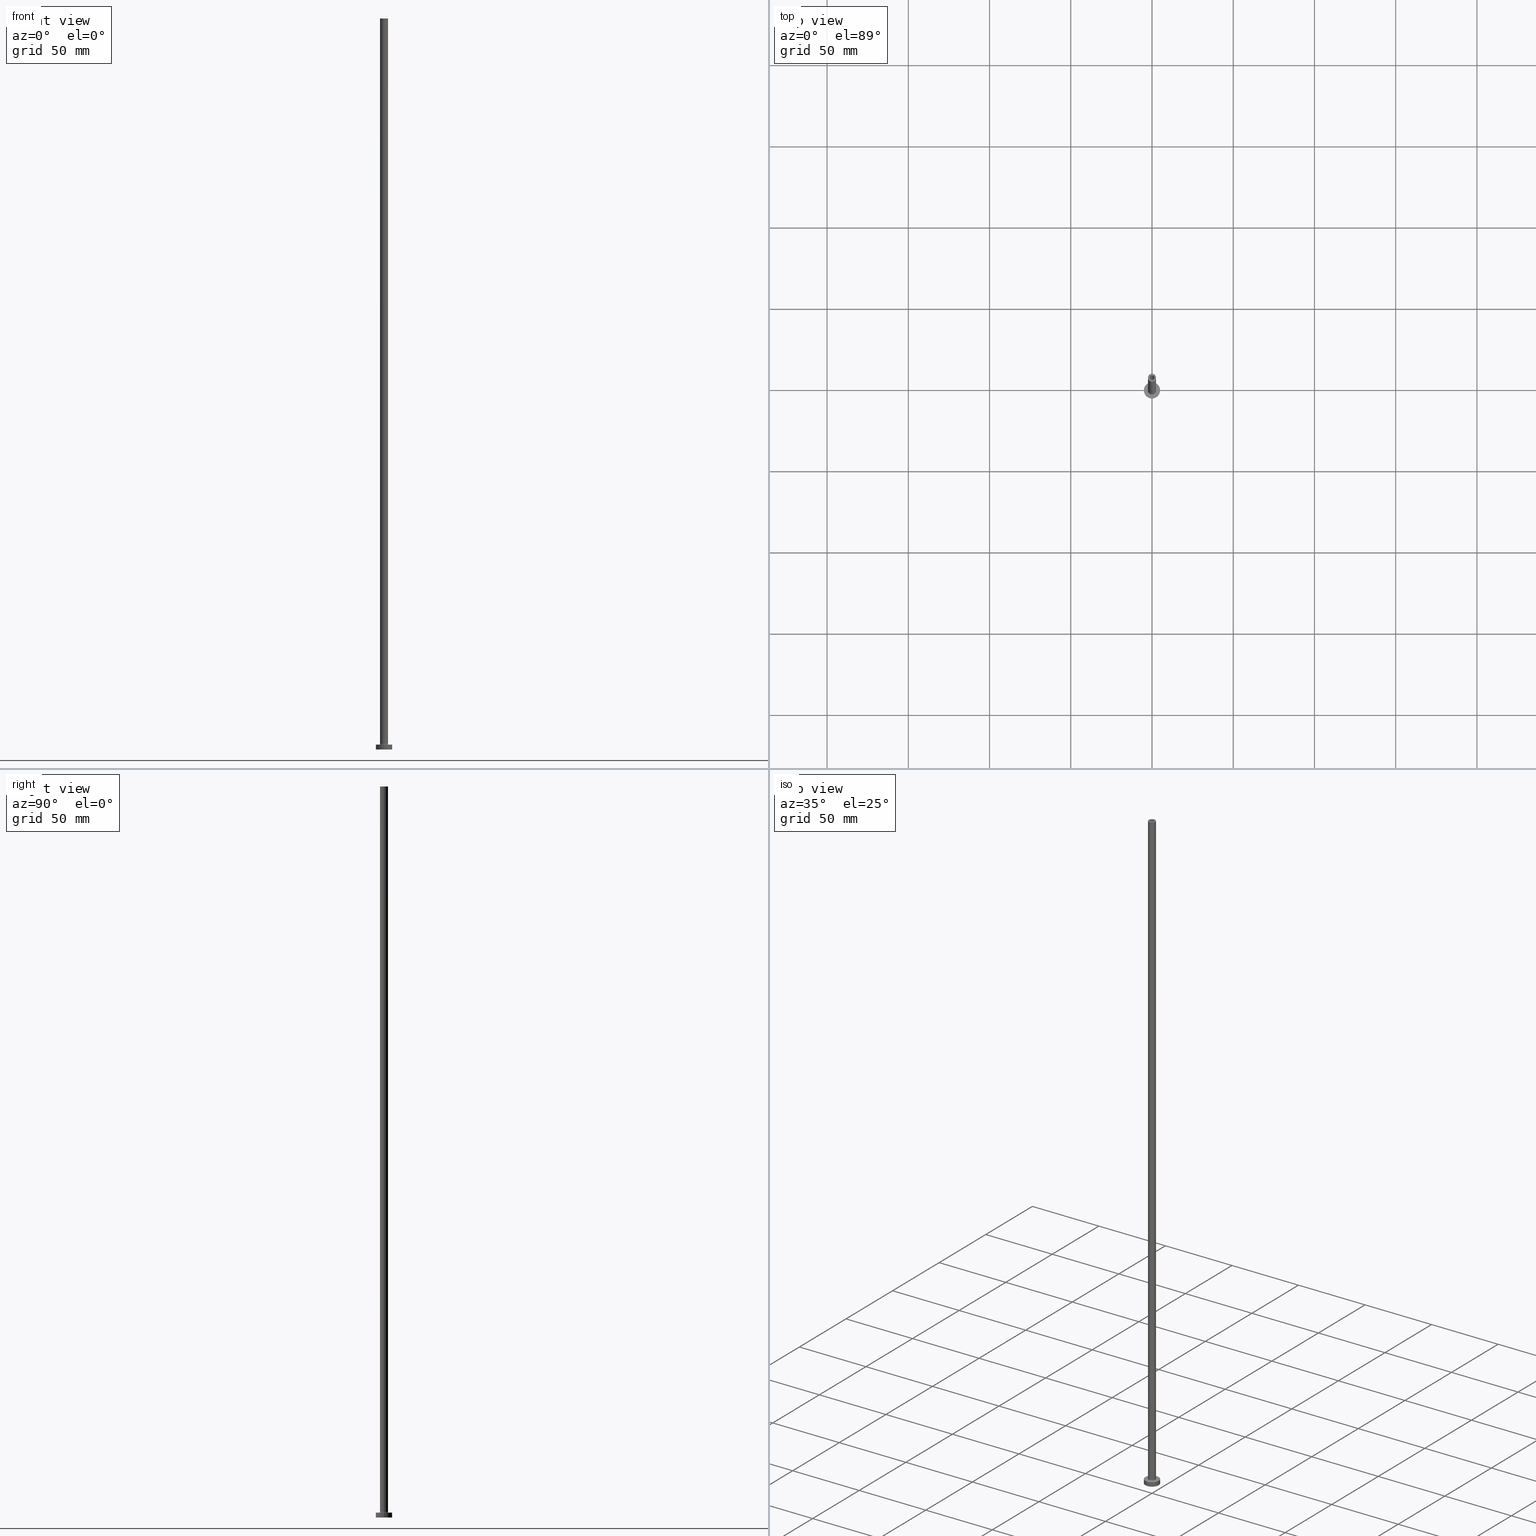
[diagram: canonical four-view strip — front | top / right | iso, engineering-drawing reading convention]
A machine part, canonical four-view strip (front | top / right | iso — engineering-drawing reading convention). The complete STEP part file that produces these views, byte-faithful:
ISO-10303-21;
HEADER;
FILE_DESCRIPTION (( 'STEP AP203' ),
    '1' );
FILE_NAME ('1eb1.STEP',
    '2023-02-13T17:58:50',
    ( '' ),
    ( '' ),
    'SwSTEP 2.0',
    'SolidWorks 2019',
    '' );
FILE_SCHEMA (( 'CONFIG_CONTROL_DESIGN' ));
ENDSEC;

DATA;
#1 = DIRECTION ( 'NONE',  ( 1.000000000000000000, 0.000000000000000000, 0.000000000000000000 ) ) ;
#2 = VECTOR ( 'NONE', #370, 1000.000000000000000 ) ;
#3 = AXIS2_PLACEMENT_3D ( 'NONE', #295, #426, #432 ) ;
#4 = EDGE_CURVE ( 'NONE', #381, #416, #97, .T. ) ;
#5 = CIRCLE ( 'NONE', #343, 5.000000000000000000 ) ;
#6 = EDGE_CURVE ( 'NONE', #65, #28, #207, .T. ) ;
#7 = EDGE_LOOP ( 'NONE', ( #69, #141 ) ) ;
#8 = DIRECTION ( 'NONE',  ( 1.000000000000000000, 0.000000000000000000, 0.000000000000000000 ) ) ;
#9 = CARTESIAN_POINT ( 'NONE',  ( -5.000000000000000000, 0.000000000000000000, 3.000000000000000000 ) ) ;
#10 = AXIS2_PLACEMENT_3D ( 'NONE', #296, #160, #212 ) ;
#11 = PERSON_AND_ORGANIZATION ( #431, #344 ) ;
#12 = COORDINATED_UNIVERSAL_TIME_OFFSET ( 1, 0, .AHEAD. ) ;
#13 = EDGE_CURVE ( 'NONE', #65, #311, #108, .T. ) ;
#14 = EDGE_LOOP ( 'NONE', ( #447, #427 ) ) ;
#15 = AXIS2_PLACEMENT_3D ( 'NONE', #80, #329, #1 ) ;
#16 = ORIENTED_EDGE ( 'NONE', *, *, #273, .T. ) ;
#17 = ORIENTED_EDGE ( 'NONE', *, *, #177, .F. ) ;
#18 = CIRCLE ( 'NONE', #368, 1.500000000000000222 ) ;
#19 = PERSON_AND_ORGANIZATION_ROLE ( 'design_owner' ) ;
#20 = ORIENTED_EDGE ( 'NONE', *, *, #145, .F. ) ;
#21 = CARTESIAN_POINT ( 'NONE',  ( -1.650000000000000133, 0.000000000000000000, 409.6669047558312400 ) ) ;
#22 = DIRECTION ( 'NONE',  ( 0.000000000000000000, 0.000000000000000000, 1.000000000000000000 ) ) ;
#23 = CARTESIAN_POINT ( 'NONE',  ( 0.000000000000000000, 0.000000000000000000, 450.0000000000000000 ) ) ;
#24 = EDGE_LOOP ( 'NONE', ( #227, #211 ) ) ;
#25 = ORIENTED_EDGE ( 'NONE', *, *, #305, .T. ) ;
#26 = ORIENTED_EDGE ( 'NONE', *, *, #6, .F. ) ;
#27 = CARTESIAN_POINT ( 'NONE',  ( -2.500000000000000000, 0.000000000000000000, 450.0000000000000000 ) ) ;
#28 = VERTEX_POINT ( 'NONE', #150 ) ;
#29 = ORIENTED_EDGE ( 'NONE', *, *, #305, .F. ) ;
#30 = CARTESIAN_POINT ( 'NONE',  ( 0.000000000000000000, 0.000000000000000000, 3.300000000000025135 ) ) ;
#31 = AXIS2_PLACEMENT_3D ( 'NONE', #231, #258, #46 ) ;
#32 = CIRCLE ( 'NONE', #124, 5.000000000000000000 ) ;
#33 = UNCERTAINTY_MEASURE_WITH_UNIT (LENGTH_MEASURE( 1.000000000000000082E-05 ), #365, 'distance_accuracy_value', 'NONE');
#34 = DIRECTION ( 'NONE',  ( -0.000000000000000000, -0.000000000000000000, -1.000000000000000000 ) ) ;
#35 = CC_DESIGN_PERSON_AND_ORGANIZATION_ASSIGNMENT ( #52, #170, ( #385 ) ) ;
#36 = FACE_OUTER_BOUND ( 'NONE', #182, .T. ) ;
#37 = DATE_AND_TIME ( #218, #214 ) ;
#38 = DIRECTION ( 'NONE',  ( 1.000000000000000000, 0.000000000000000000, 0.000000000000000000 ) ) ;
#39 = ORIENTED_EDGE ( 'NONE', *, *, #102, .F. ) ;
#40 = CARTESIAN_POINT ( 'NONE',  ( 0.000000000000000000, 0.000000000000000000, 3.300000000000025135 ) ) ;
#41 = DIRECTION ( 'NONE',  ( 0.000000000000000000, 0.000000000000000000, 1.000000000000000000 ) ) ;
#42 = TOROIDAL_SURFACE ( 'NONE', #98, 2.799999999999999822, 0.2999999999999999889 ) ;
#43 = FACE_OUTER_BOUND ( 'NONE', #318, .T. ) ;
#44 = LINE ( 'NONE', #118, #91 ) ;
#45 = CC_DESIGN_PERSON_AND_ORGANIZATION_ASSIGNMENT ( #194, #90, ( #455 ) ) ;
#46 = DIRECTION ( 'NONE',  ( 1.000000000000000000, 0.000000000000000000, 0.000000000000000000 ) ) ;
#47 = VECTOR ( 'NONE', #138, 1000.000000000000000 ) ;
#48 = EDGE_CURVE ( 'NONE', #203, #454, #277, .T. ) ;
#49 = DIRECTION ( 'NONE',  ( 0.000000000000000000, -1.000000000000000000, 0.000000000000000000 ) ) ;
#50 = FACE_OUTER_BOUND ( 'NONE', #393, .T. ) ;
#51 = AXIS2_PLACEMENT_3D ( 'NONE', #220, #22, #113 ) ;
#52 = PERSON_AND_ORGANIZATION ( #431, #344 ) ;
#53 = ORIENTED_EDGE ( 'NONE', *, *, #4, .T. ) ;
#54 = APPROVAL_ROLE ( '' ) ;
#55 = FACE_OUTER_BOUND ( 'NONE', #14, .T. ) ;
#56 = CARTESIAN_POINT ( 'NONE',  ( 0.000000000000000000, 0.000000000000000000, 450.0000000000000000 ) ) ;
#57 = DATE_AND_TIME ( #181, #143 ) ;
#58 = DIRECTION ( 'NONE',  ( -1.000000000000000000, 0.000000000000000000, 0.000000000000000000 ) ) ;
#59 = ORIENTED_EDGE ( 'NONE', *, *, #259, .F. ) ;
#60 = FACE_BOUND ( 'NONE', #100, .T. ) ;
#61 = ORIENTED_EDGE ( 'NONE', *, *, #102, .T. ) ;
#62 = FACE_OUTER_BOUND ( 'NONE', #222, .T. ) ;
#63 = CC_DESIGN_APPROVAL ( #186, ( #455 ) ) ;
#64 = MANIFOLD_SOLID_BREP ( 'Odebrat vysunut�m4', #237 ) ;
#65 = VERTEX_POINT ( 'NONE', #363 ) ;
#66 = FACE_BOUND ( 'NONE', #136, .T. ) ;
#67 = CARTESIAN_POINT ( 'NONE',  ( 0.000000000000000000, 0.000000000000000000, 3.300000000000025135 ) ) ;
#68 = PERSON_AND_ORGANIZATION ( #431, #344 ) ;
#69 = ORIENTED_EDGE ( 'NONE', *, *, #48, .T. ) ;
#70 = CARTESIAN_POINT ( 'NONE',  ( 5.000000000000000000, 6.123233995736766282E-16, 3.000000000000000000 ) ) ;
#71 = AXIS2_PLACEMENT_3D ( 'NONE', #376, #406, #442 ) ;
#72 = CC_DESIGN_APPROVAL ( #132, ( #385 ) ) ;
#73 = CARTESIAN_POINT ( 'NONE',  ( 0.000000000000000000, 0.000000000000000000, 409.6669047558312400 ) ) ;
#74 = DIRECTION ( 'NONE',  ( 1.000000000000000000, 0.000000000000000000, 0.000000000000000000 ) ) ;
#75 = FACE_OUTER_BOUND ( 'NONE', #317, .T. ) ;
#76 = ADVANCED_FACE ( 'NONE', ( #36 ), #326, .T. ) ;
#77 = ORIENTED_EDGE ( 'NONE', *, *, #156, .F. ) ;
#78 = CIRCLE ( 'NONE', #183, 0.2999999999999999334 ) ;
#79 = CIRCLE ( 'NONE', #3, 2.500000000000000000 ) ;
#80 = CARTESIAN_POINT ( 'NONE',  ( 0.000000000000000000, 0.000000000000000000, 0.000000000000000000 ) ) ;
#81 = CARTESIAN_POINT ( 'NONE',  ( 0.000000000000000000, 0.000000000000000000, 3.000000000000000000 ) ) ;
#82 = PLANE ( 'NONE',  #244 ) ;
#83 = PRODUCT_DEFINITION_SHAPE ( 'NONE', 'NONE',  #385 ) ;
#84 = VECTOR ( 'NONE', #413, 1000.000000000000000 ) ;
#85 = DIRECTION ( 'NONE',  ( 1.000000000000000000, 0.000000000000000000, -0.000000000000000000 ) ) ;
#86 = EDGE_CURVE ( 'NONE', #418, #188, #330, .T. ) ;
#87 = DIRECTION ( 'NONE',  ( 0.000000000000000000, 0.000000000000000000, 1.000000000000000000 ) ) ;
#88 = PLANE ( 'NONE',  #71 ) ;
#89 = COORDINATED_UNIVERSAL_TIME_OFFSET ( 1, 0, .AHEAD. ) ;
#90 = PERSON_AND_ORGANIZATION_ROLE ( 'design_supplier' ) ;
#91 = VECTOR ( 'NONE', #263, 1000.000000000000000 ) ;
#92 = EDGE_CURVE ( 'NONE', #215, #28, #157, .T. ) ;
#93 = EDGE_CURVE ( 'NONE', #420, #172, #249, .T. ) ;
#94 = ORIENTED_EDGE ( 'NONE', *, *, #93, .T. ) ;
#95 = ORIENTED_EDGE ( 'NONE', *, *, #13, .T. ) ;
#96 = CARTESIAN_POINT ( 'NONE',  ( -2.799999999999999822, 3.429011037612588783E-16, 3.300000000000025135 ) ) ;
#97 = CIRCLE ( 'NONE', #352, 1.500000000000000222 ) ;
#98 = AXIS2_PLACEMENT_3D ( 'NONE', #30, #402, #364 ) ;
#99 = EDGE_LOOP ( 'NONE', ( #449, #204, #378, #137 ) ) ;
#100 = EDGE_LOOP ( 'NONE', ( #235, #208 ) ) ;
#101 = ORIENTED_EDGE ( 'NONE', *, *, #289, .F. ) ;
#102 = EDGE_CURVE ( 'NONE', #420, #416, #320, .T. ) ;
#103 = CARTESIAN_POINT ( 'NONE',  ( -1.500000000000000222, 0.000000000000000000, 405.0000000000000000 ) ) ;
#104 = CARTESIAN_POINT ( 'NONE',  ( 0.000000000000000000, 0.000000000000000000, 3.000000000000000000 ) ) ;
#105 = PRODUCT ( '1eb1', '1eb1', '', ( #154 ) ) ;
#106 = CARTESIAN_POINT ( 'NONE',  ( 2.500000000000000000, 3.061616997868383141E-16, 450.0000000000000000 ) ) ;
#107 = FACE_OUTER_BOUND ( 'NONE', #355, .T. ) ;
#108 = CIRCLE ( 'NONE', #221, 1.650000000000000133 ) ;
#109 = CC_DESIGN_SECURITY_CLASSIFICATION ( #409, ( #455 ) ) ;
#110 = DIRECTION ( 'NONE',  ( 1.000000000000000000, 0.000000000000000000, 0.000000000000000000 ) ) ;
#111 = CARTESIAN_POINT ( 'NONE',  ( 0.000000000000000000, 0.000000000000000000, 3.000000000000000000 ) ) ;
#112 = DIRECTION ( 'NONE',  ( 1.000000000000000000, 0.000000000000000000, 0.000000000000000000 ) ) ;
#113 = DIRECTION ( 'NONE',  ( 1.000000000000000000, 0.000000000000000000, 0.000000000000000000 ) ) ;
#114 = EDGE_CURVE ( 'NONE', #126, #144, #148, .T. ) ;
#115 = ORIENTED_EDGE ( 'NONE', *, *, #298, .F. ) ;
#116 = EDGE_CURVE ( 'NONE', #416, #381, #205, .T. ) ;
#117 = CARTESIAN_POINT ( 'NONE',  ( 0.000000000000000000, 0.000000000000000000, 405.0000000000000000 ) ) ;
#118 = CARTESIAN_POINT ( 'NONE',  ( 5.000000000000000000, 6.123233995736766282E-16, 3.000000000000000000 ) ) ;
#119 = LINE ( 'NONE', #438, #84 ) ;
#120 = PERSON_AND_ORGANIZATION ( #431, #344 ) ;
#121 = ADVANCED_FACE ( 'NONE', ( #43 ), #163, .F. ) ;
#122 = PERSON_AND_ORGANIZATION_ROLE ( 'creator' ) ;
#123 = CIRCLE ( 'NONE', #174, 1.650000000000000133 ) ;
#124 = AXIS2_PLACEMENT_3D ( 'NONE', #399, #185, #461 ) ;
#125 = DIRECTION ( 'NONE',  ( 0.000000000000000000, 0.000000000000000000, 1.000000000000000000 ) ) ;
#126 = VERTEX_POINT ( 'NONE', #9 ) ;
#127 = EDGE_LOOP ( 'NONE', ( #94, #283, #338, #39 ) ) ;
#128 = ORIENTED_EDGE ( 'NONE', *, *, #200, .T. ) ;
#129 = CIRCLE ( 'NONE', #307, 5.000000000000000000 ) ;
#130 = AXIS2_PLACEMENT_3D ( 'NONE', #73, #219, #366 ) ;
#131 = ORIENTED_EDGE ( 'NONE', *, *, #116, .T. ) ;
#132 = APPROVAL ( #178, 'NEUR�EN�' ) ;
#133 = ORIENTED_EDGE ( 'NONE', *, *, #200, .F. ) ;
#134 = ORIENTED_EDGE ( 'NONE', *, *, #419, .T. ) ;
#135 = APPLICATION_PROTOCOL_DEFINITION ( 'international standard', 'config_control_design', 1994, #280 ) ;
#136 = EDGE_LOOP ( 'NONE', ( #29, #396 ) ) ;
#137 = ORIENTED_EDGE ( 'NONE', *, *, #114, .F. ) ;
#138 = DIRECTION ( 'NONE',  ( 0.000000000000000000, 0.000000000000000000, -1.000000000000000000 ) ) ;
#139 = DIRECTION ( 'NONE',  ( -0.000000000000000000, -0.000000000000000000, -1.000000000000000000 ) ) ;
#140 = DIRECTION ( 'NONE',  ( -1.000000000000000000, 1.224646799147353207E-16, 0.000000000000000000 ) ) ;
#141 = ORIENTED_EDGE ( 'NONE', *, *, #224, .T. ) ;
#142 = AXIS2_PLACEMENT_3D ( 'NONE', #180, #460, #74 ) ;
#143 = LOCAL_TIME ( 18, 58, 50.00000000000000000, #89 ) ;
#144 = VERTEX_POINT ( 'NONE', #339 ) ;
#145 = EDGE_CURVE ( 'NONE', #417, #253, #44, .T. ) ;
#146 = DIRECTION ( 'NONE',  ( 0.000000000000000000, 0.000000000000000000, 1.000000000000000000 ) ) ;
#147 = CARTESIAN_POINT ( 'NONE',  ( 0.000000000000000000, 0.000000000000000000, 450.0000000000000000 ) ) ;
#148 = LINE ( 'NONE', #323, #285 ) ;
#149 = CARTESIAN_POINT ( 'NONE',  ( -1.500000000000000222, 0.000000000000000000, 450.0000000000000000 ) ) ;
#150 = CARTESIAN_POINT ( 'NONE',  ( -1.650000000000000133, 0.000000000000000000, 0.000000000000000000 ) ) ;
#151 = EDGE_CURVE ( 'NONE', #311, #215, #228, .T. ) ;
#152 = APPROVAL_DATE_TIME ( #37, #458 ) ;
#153 = AXIS2_PLACEMENT_3D ( 'NONE', #104, #358, #110 ) ;
#154 = MECHANICAL_CONTEXT ( 'NONE', #395, 'mechanical' ) ;
#155 = CARTESIAN_POINT ( 'NONE',  ( 1.650000000000000133, 2.020667218593133001E-16, 0.000000000000000000 ) ) ;
#156 = EDGE_CURVE ( 'NONE', #418, #203, #453, .T. ) ;
#157 = CIRCLE ( 'NONE', #142, 1.650000000000000133 ) ;
#158 = ADVANCED_BREP_SHAPE_REPRESENTATION ( '1eb1', ( #64, #261 ), #269 ) ;
#159 = DIRECTION ( 'NONE',  ( -0.000000000000000000, -0.000000000000000000, -1.000000000000000000 ) ) ;
#160 = DIRECTION ( 'NONE',  ( -0.000000000000000000, -0.000000000000000000, -1.000000000000000000 ) ) ;
#161 = LINE ( 'NONE', #270, #315 ) ;
#162 = DIRECTION ( 'NONE',  ( -1.000000000000000000, 0.000000000000000000, 0.000000000000000000 ) ) ;
#163 = TOROIDAL_SURFACE ( 'NONE', #31, 2.799999999999999822, 0.2999999999999999889 ) ;
#164 = CARTESIAN_POINT ( 'NONE',  ( 1.650000000000000133, 2.020667218593133001E-16, 405.0000000000000000 ) ) ;
#165 = CYLINDRICAL_SURFACE ( 'NONE', #213, 1.500000000000000222 ) ;
#166 = ORIENTED_EDGE ( 'NONE', *, *, #333, .F. ) ;
#167 = CARTESIAN_POINT ( 'NONE',  ( 0.000000000000000000, 0.000000000000000000, 0.000000000000000000 ) ) ;
#168 = DIRECTION ( 'NONE',  ( 0.000000000000000000, 0.000000000000000000, -1.000000000000000000 ) ) ;
#169 = ADVANCED_FACE ( 'NONE', ( #60, #55 ), #198, .T. ) ;
#170 = PERSON_AND_ORGANIZATION_ROLE ( 'creator' ) ;
#171 = CC_DESIGN_DATE_AND_TIME_ASSIGNMENT ( #425, #394, ( #385 ) ) ;
#172 = VERTEX_POINT ( 'NONE', #195 ) ;
#173 = PLANE ( 'NONE',  #229 ) ;
#174 = AXIS2_PLACEMENT_3D ( 'NONE', #397, #430, #268 ) ;
#175 = AXIS2_PLACEMENT_3D ( 'NONE', #459, #34, #404 ) ;
#176 = CARTESIAN_POINT ( 'NONE',  ( 0.000000000000000000, 0.000000000000000000, 405.0000000000000000 ) ) ;
#177 = EDGE_CURVE ( 'NONE', #281, #418, #161, .T. ) ;
#178 = APPROVAL_STATUS ( 'not_yet_approved' ) ;
#179 = ORIENTED_EDGE ( 'NONE', *, *, #114, .T. ) ;
#180 = CARTESIAN_POINT ( 'NONE',  ( 0.000000000000000000, 0.000000000000000000, 0.000000000000000000 ) ) ;
#181 = CALENDAR_DATE ( 2023, 13, 2 ) ;
#182 = EDGE_LOOP ( 'NONE', ( #115, #192, #443, #166 ) ) ;
#183 = AXIS2_PLACEMENT_3D ( 'NONE', #96, #245, #140 ) ;
#184 = DIRECTION ( 'NONE',  ( 0.000000000000000000, 0.000000000000000000, -1.000000000000000000 ) ) ;
#185 = DIRECTION ( 'NONE',  ( 0.000000000000000000, 0.000000000000000000, 1.000000000000000000 ) ) ;
#186 = APPROVAL ( #398, 'NEUR�EN�' ) ;
#187 = CARTESIAN_POINT ( 'NONE',  ( 2.799999999999999822, 0.000000000000000000, 3.000000000000012434 ) ) ;
#188 = VERTEX_POINT ( 'NONE', #342 ) ;
#189 = AXIS2_PLACEMENT_3D ( 'NONE', #193, #87, #8 ) ;
#190 = AXIS2_PLACEMENT_3D ( 'NONE', #67, #297, #367 ) ;
#191 = APPROVAL_PERSON_ORGANIZATION ( #380, #132, #353 ) ;
#192 = ORIENTED_EDGE ( 'NONE', *, *, #177, .T. ) ;
#193 = CARTESIAN_POINT ( 'NONE',  ( 0.000000000000000000, 0.000000000000000000, 450.0000000000000000 ) ) ;
#194 = PERSON_AND_ORGANIZATION ( #431, #344 ) ;
#195 = CARTESIAN_POINT ( 'NONE',  ( 1.500000000000000222, 1.836970198721029934E-16, 450.0000000000000000 ) ) ;
#196 = AXIS2_PLACEMENT_3D ( 'NONE', #111, #252, #162 ) ;
#197 = LOCAL_TIME ( 18, 58, 50.00000000000000000, #241 ) ;
#198 = PLANE ( 'NONE',  #362 ) ;
#199 = ADVANCED_FACE ( 'NONE', ( #306 ), #165, .F. ) ;
#200 = EDGE_CURVE ( 'NONE', #144, #253, #129, .T. ) ;
#201 = PERSON_AND_ORGANIZATION ( #431, #344 ) ;
#202 = DIRECTION ( 'NONE',  ( 1.000000000000000000, 0.000000000000000000, 0.000000000000000000 ) ) ;
#203 = VERTEX_POINT ( 'NONE', #187 ) ;
#204 = ORIENTED_EDGE ( 'NONE', *, *, #145, .T. ) ;
#205 = CIRCLE ( 'NONE', #446, 1.500000000000000222 ) ;
#206 = DIRECTION ( 'NONE',  ( 0.000000000000000000, 0.000000000000000000, -1.000000000000000000 ) ) ;
#207 = LINE ( 'NONE', #21, #47 ) ;
#208 = ORIENTED_EDGE ( 'NONE', *, *, #414, .F. ) ;
#209 = ORIENTED_EDGE ( 'NONE', *, *, #92, .T. ) ;
#210 = FACE_OUTER_BOUND ( 'NONE', #274, .T. ) ;
#211 = ORIENTED_EDGE ( 'NONE', *, *, #273, .F. ) ;
#212 = DIRECTION ( 'NONE',  ( 1.000000000000000000, 0.000000000000000000, 0.000000000000000000 ) ) ;
#213 = AXIS2_PLACEMENT_3D ( 'NONE', #56, #168, #384 ) ;
#214 = LOCAL_TIME ( 18, 58, 50.00000000000000000, #12 ) ;
#215 = VERTEX_POINT ( 'NONE', #155 ) ;
#216 = DIRECTION ( 'NONE',  ( -1.000000000000000000, 0.000000000000000000, 0.000000000000000000 ) ) ;
#217 = DIRECTION ( 'NONE',  ( -1.000000000000000000, 0.000000000000000000, 0.000000000000000000 ) ) ;
#218 = CALENDAR_DATE ( 2023, 13, 2 ) ;
#219 = DIRECTION ( 'NONE',  ( 0.000000000000000000, 0.000000000000000000, -1.000000000000000000 ) ) ;
#220 = CARTESIAN_POINT ( 'NONE',  ( 0.000000000000000000, 0.000000000000000000, 450.0000000000000000 ) ) ;
#221 = AXIS2_PLACEMENT_3D ( 'NONE', #284, #383, #349 ) ;
#222 = EDGE_LOOP ( 'NONE', ( #388, #291, #354, #356 ) ) ;
#223 = CC_DESIGN_APPROVAL ( #458, ( #409 ) ) ;
#224 = EDGE_CURVE ( 'NONE', #454, #203, #371, .T. ) ;
#225 = FACE_OUTER_BOUND ( 'NONE', #99, .T. ) ;
#226 = DIRECTION ( 'NONE',  ( -0.000000000000000000, -0.000000000000000000, -1.000000000000000000 ) ) ;
#227 = ORIENTED_EDGE ( 'NONE', *, *, #13, .F. ) ;
#228 = LINE ( 'NONE', #372, #2 ) ;
#229 = AXIS2_PLACEMENT_3D ( 'NONE', #379, #448, #243 ) ;
#230 = DIRECTION ( 'NONE',  ( 0.000000000000000000, 0.000000000000000000, 1.000000000000000000 ) ) ;
#231 = CARTESIAN_POINT ( 'NONE',  ( 0.000000000000000000, 0.000000000000000000, 3.300000000000025135 ) ) ;
#232 = LINE ( 'NONE', #411, #439 ) ;
#233 = COORDINATED_UNIVERSAL_TIME_OFFSET ( 1, 0, .AHEAD. ) ;
#234 = PERSON_AND_ORGANIZATION ( #431, #344 ) ;
#235 = ORIENTED_EDGE ( 'NONE', *, *, #93, .F. ) ;
#236 = APPROVAL_STATUS ( 'not_yet_approved' ) ;
#237 = CLOSED_SHELL ( 'NONE', ( #199, #429, #121, #76, #347, #292, #341, #361, #441, #169, #408, #373, #335, #410 ) ) ;
#238 = AXIS2_PLACEMENT_3D ( 'NONE', #40, #41, #112 ) ;
#239 = DATE_AND_TIME ( #303, #433 ) ;
#240 = DIRECTION ( 'NONE',  ( 0.000000000000000000, 0.000000000000000000, 1.000000000000000000 ) ) ;
#241 = COORDINATED_UNIVERSAL_TIME_OFFSET ( 1, 0, .AHEAD. ) ;
#242 = DIRECTION ( 'NONE',  ( -1.000000000000000000, 0.000000000000000000, 0.000000000000000000 ) ) ;
#243 = DIRECTION ( 'NONE',  ( 1.000000000000000000, 0.000000000000000000, -0.000000000000000000 ) ) ;
#244 = AXIS2_PLACEMENT_3D ( 'NONE', #117, #230, #374 ) ;
#245 = DIRECTION ( 'NONE',  ( 1.224646799147353207E-16, 1.000000000000000000, -0.000000000000000000 ) ) ;
#246 = VERTEX_POINT ( 'NONE', #27 ) ;
#247 = CARTESIAN_POINT ( 'NONE',  ( 0.000000000000000000, 0.000000000000000000, 405.0000000000000000 ) ) ;
#248 = CARTESIAN_POINT ( 'NONE',  ( 2.500000000000000000, 3.061616997868383141E-16, 3.300000000000025135 ) ) ;
#249 = CIRCLE ( 'NONE', #51, 1.500000000000000222 ) ;
#250 = CYLINDRICAL_SURFACE ( 'NONE', #130, 1.650000000000000133 ) ;
#251 = CARTESIAN_POINT ( 'NONE',  ( 0.000000000000000000, 0.000000000000000000, 450.0000000000000000 ) ) ;
#252 = DIRECTION ( 'NONE',  ( -0.000000000000000000, -0.000000000000000000, -1.000000000000000000 ) ) ;
#253 = VERTEX_POINT ( 'NONE', #282 ) ;
#254 = CARTESIAN_POINT ( 'NONE',  ( -1.500000000000000222, 0.000000000000000000, 450.0000000000000000 ) ) ;
#255 = CYLINDRICAL_SURFACE ( 'NONE', #196, 5.000000000000000000 ) ;
#256 = CALENDAR_DATE ( 2023, 13, 2 ) ;
#257 = EDGE_CURVE ( 'NONE', #188, #454, #78, .T. ) ;
#258 = DIRECTION ( 'NONE',  ( 0.000000000000000000, 0.000000000000000000, 1.000000000000000000 ) ) ;
#259 = EDGE_CURVE ( 'NONE', #126, #417, #5, .T. ) ;
#260 = CIRCLE ( 'NONE', #189, 2.500000000000000000 ) ;
#261 = AXIS2_PLACEMENT_3D ( 'NONE', #167, #445, #415 ) ;
#262 = FACE_OUTER_BOUND ( 'NONE', #450, .T. ) ;
#263 = DIRECTION ( 'NONE',  ( -0.000000000000000000, -0.000000000000000000, -1.000000000000000000 ) ) ;
#264 = CARTESIAN_POINT ( 'NONE',  ( 0.000000000000000000, 0.000000000000000000, 0.000000000000000000 ) ) ;
#265 = APPROVAL_ROLE ( '' ) ;
#266 = AXIS2_PLACEMENT_3D ( 'NONE', #264, #159, #267 ) ;
#267 = DIRECTION ( 'NONE',  ( 1.000000000000000000, 0.000000000000000000, 0.000000000000000000 ) ) ;
#268 = DIRECTION ( 'NONE',  ( 1.000000000000000000, 0.000000000000000000, 0.000000000000000000 ) ) ;
#269 =( GEOMETRIC_REPRESENTATION_CONTEXT ( 3 ) GLOBAL_UNCERTAINTY_ASSIGNED_CONTEXT ( ( #33 ) ) GLOBAL_UNIT_ASSIGNED_CONTEXT ( ( #365, #434, #401 ) ) REPRESENTATION_CONTEXT ( 'NONE', 'WORKASPACE' ) );
#270 = CARTESIAN_POINT ( 'NONE',  ( 2.500000000000000000, 3.061616997868383141E-16, 450.0000000000000000 ) ) ;
#271 = COORDINATED_UNIVERSAL_TIME_OFFSET ( 1, 0, .AHEAD. ) ;
#272 = APPLICATION_PROTOCOL_DEFINITION ( 'international standard', 'config_control_design', 1994, #395 ) ;
#273 = EDGE_CURVE ( 'NONE', #311, #65, #123, .T. ) ;
#274 = EDGE_LOOP ( 'NONE', ( #133, #101 ) ) ;
#275 = FACE_OUTER_BOUND ( 'NONE', #321, .T. ) ;
#276 = APPROVAL_DATE_TIME ( #239, #186 ) ;
#277 = CIRCLE ( 'NONE', #153, 2.799999999999999822 ) ;
#278 = ORIENTED_EDGE ( 'NONE', *, *, #6, .T. ) ;
#279 = ORIENTED_EDGE ( 'NONE', *, *, #259, .T. ) ;
#280 = APPLICATION_CONTEXT ( 'configuration controlled 3d designs of mechanical parts and assemblies' ) ;
#281 = VERTEX_POINT ( 'NONE', #106 ) ;
#282 = CARTESIAN_POINT ( 'NONE',  ( 5.000000000000000000, 6.123233995736766282E-16, 0.000000000000000000 ) ) ;
#283 = ORIENTED_EDGE ( 'NONE', *, *, #299, .T. ) ;
#284 = CARTESIAN_POINT ( 'NONE',  ( 0.000000000000000000, 0.000000000000000000, 405.0000000000000000 ) ) ;
#285 = VECTOR ( 'NONE', #424, 1000.000000000000000 ) ;
#286 = DIRECTION ( 'NONE',  ( 0.000000000000000000, 0.000000000000000000, -1.000000000000000000 ) ) ;
#287 = AXIS2_PLACEMENT_3D ( 'NONE', #360, #184, #216 ) ;
#288 = EDGE_LOOP ( 'NONE', ( #131, #53 ) ) ;
#289 = EDGE_CURVE ( 'NONE', #253, #144, #390, .T. ) ;
#290 = DIRECTION ( 'NONE',  ( 1.000000000000000000, 0.000000000000000000, 0.000000000000000000 ) ) ;
#291 = ORIENTED_EDGE ( 'NONE', *, *, #86, .F. ) ;
#292 = ADVANCED_FACE ( 'NONE', ( #75 ), #255, .T. ) ;
#293 = DIRECTION ( 'NONE',  ( 0.000000000000000000, 0.000000000000000000, 1.000000000000000000 ) ) ;
#294 = DIRECTION ( 'NONE',  ( 1.000000000000000000, 0.000000000000000000, 0.000000000000000000 ) ) ;
#295 = CARTESIAN_POINT ( 'NONE',  ( 0.000000000000000000, 0.000000000000000000, 450.0000000000000000 ) ) ;
#296 = CARTESIAN_POINT ( 'NONE',  ( 0.000000000000000000, 0.000000000000000000, 3.000000000000000000 ) ) ;
#297 = DIRECTION ( 'NONE',  ( 0.000000000000000000, 0.000000000000000000, 1.000000000000000000 ) ) ;
#298 = EDGE_CURVE ( 'NONE', #281, #246, #260, .T. ) ;
#299 = EDGE_CURVE ( 'NONE', #172, #381, #119, .T. ) ;
#300 = VECTOR ( 'NONE', #286, 1000.000000000000000 ) ;
#301 = CC_DESIGN_DATE_AND_TIME_ASSIGNMENT ( #375, #309, ( #409 ) ) ;
#302 = DIRECTION ( 'NONE',  ( -0.000000000000000000, -0.000000000000000000, -1.000000000000000000 ) ) ;
#303 = CALENDAR_DATE ( 2023, 13, 2 ) ;
#304 = DIRECTION ( 'NONE',  ( 0.000000000000000000, 0.000000000000000000, -1.000000000000000000 ) ) ;
#305 = EDGE_CURVE ( 'NONE', #28, #215, #336, .T. ) ;
#306 = FACE_OUTER_BOUND ( 'NONE', #127, .T. ) ;
#307 = AXIS2_PLACEMENT_3D ( 'NONE', #357, #322, #325 ) ;
#308 = AXIS2_PLACEMENT_3D ( 'NONE', #348, #206, #242 ) ;
#309 = DATE_TIME_ROLE ( 'classification_date' ) ;
#310 = FACE_OUTER_BOUND ( 'NONE', #24, .T. ) ;
#311 = VERTEX_POINT ( 'NONE', #164 ) ;
#312 = PERSON_AND_ORGANIZATION_ROLE ( 'classification_officer' ) ;
#313 = ORIENTED_EDGE ( 'NONE', *, *, #48, .F. ) ;
#314 = CC_DESIGN_PERSON_AND_ORGANIZATION_ASSIGNMENT ( #11, #312, ( #409 ) ) ;
#315 = VECTOR ( 'NONE', #139, 1000.000000000000000 ) ;
#316 = APPROVAL_PERSON_ORGANIZATION ( #234, #458, #54 ) ;
#317 = EDGE_LOOP ( 'NONE', ( #20, #59, #179, #128 ) ) ;
#318 = EDGE_LOOP ( 'NONE', ( #327, #386, #313, #77 ) ) ;
#319 = ORIENTED_EDGE ( 'NONE', *, *, #151, .F. ) ;
#320 = LINE ( 'NONE', #254, #300 ) ;
#321 = EDGE_LOOP ( 'NONE', ( #319, #16, #278, #25 ) ) ;
#322 = DIRECTION ( 'NONE',  ( 0.000000000000000000, 0.000000000000000000, 1.000000000000000000 ) ) ;
#323 = CARTESIAN_POINT ( 'NONE',  ( -5.000000000000000000, 0.000000000000000000, 3.000000000000000000 ) ) ;
#324 = CARTESIAN_POINT ( 'NONE',  ( -2.799999999999999822, 3.429011037612589276E-16, 3.000000000000012434 ) ) ;
#325 = DIRECTION ( 'NONE',  ( 1.000000000000000000, 0.000000000000000000, 0.000000000000000000 ) ) ;
#326 = CYLINDRICAL_SURFACE ( 'NONE', #377, 2.500000000000000000 ) ;
#327 = ORIENTED_EDGE ( 'NONE', *, *, #437, .F. ) ;
#328 = FACE_OUTER_BOUND ( 'NONE', #359, .T. ) ;
#329 = DIRECTION ( 'NONE',  ( 0.000000000000000000, 0.000000000000000000, 1.000000000000000000 ) ) ;
#330 = CIRCLE ( 'NONE', #190, 2.500000000000000000 ) ;
#331 = SHAPE_DEFINITION_REPRESENTATION ( #83, #158 ) ;
#332 = CYLINDRICAL_SURFACE ( 'NONE', #175, 2.500000000000000000 ) ;
#333 = EDGE_CURVE ( 'NONE', #246, #188, #232, .T. ) ;
#334 = CYLINDRICAL_SURFACE ( 'NONE', #400, 5.000000000000000000 ) ;
#335 = ADVANCED_FACE ( 'NONE', ( #436, #310 ), #82, .F. ) ;
#336 = CIRCLE ( 'NONE', #266, 1.650000000000000133 ) ;
#337 = LOCAL_TIME ( 18, 58, 50.00000000000000000, #233 ) ;
#338 = ORIENTED_EDGE ( 'NONE', *, *, #116, .F. ) ;
#339 = CARTESIAN_POINT ( 'NONE',  ( -5.000000000000000000, 0.000000000000000000, 0.000000000000000000 ) ) ;
#340 = ORIENTED_EDGE ( 'NONE', *, *, #333, .T. ) ;
#341 = ADVANCED_FACE ( 'NONE', ( #440, #50 ), #88, .T. ) ;
#342 = CARTESIAN_POINT ( 'NONE',  ( -2.500000000000000000, 0.000000000000000000, 3.300000000000025135 ) ) ;
#343 = AXIS2_PLACEMENT_3D ( 'NONE', #392, #146, #290 ) ;
#344 = ORGANIZATION ( 'NEUR�EN�', 'NEUR�EN�', '' ) ;
#345 = CYLINDRICAL_SURFACE ( 'NONE', #308, 1.650000000000000133 ) ;
#346 = ORIENTED_EDGE ( 'NONE', *, *, #299, .F. ) ;
#347 = ADVANCED_FACE ( 'NONE', ( #225 ), #334, .T. ) ;
#348 = CARTESIAN_POINT ( 'NONE',  ( 0.000000000000000000, 0.000000000000000000, 409.6669047558312400 ) ) ;
#349 = DIRECTION ( 'NONE',  ( 1.000000000000000000, 0.000000000000000000, 0.000000000000000000 ) ) ;
#350 = CC_DESIGN_PERSON_AND_ORGANIZATION_ASSIGNMENT ( #201, #122, ( #455 ) ) ;
#351 = ORIENTED_EDGE ( 'NONE', *, *, #151, .T. ) ;
#352 = AXIS2_PLACEMENT_3D ( 'NONE', #176, #240, #202 ) ;
#353 = APPROVAL_ROLE ( '' ) ;
#354 = ORIENTED_EDGE ( 'NONE', *, *, #156, .T. ) ;
#355 = EDGE_LOOP ( 'NONE', ( #95, #351, #209, #26 ) ) ;
#356 = ORIENTED_EDGE ( 'NONE', *, *, #224, .F. ) ;
#357 = CARTESIAN_POINT ( 'NONE',  ( 0.000000000000000000, 0.000000000000000000, 0.000000000000000000 ) ) ;
#358 = DIRECTION ( 'NONE',  ( -0.000000000000000000, -0.000000000000000000, -1.000000000000000000 ) ) ;
#359 = EDGE_LOOP ( 'NONE', ( #346, #435, #61, #389 ) ) ;
#360 = CARTESIAN_POINT ( 'NONE',  ( 0.000000000000000000, 0.000000000000000000, 450.0000000000000000 ) ) ;
#361 = ADVANCED_FACE ( 'NONE', ( #66, #210 ), #173, .F. ) ;
#362 = AXIS2_PLACEMENT_3D ( 'NONE', #23, #125, #85 ) ;
#363 = CARTESIAN_POINT ( 'NONE',  ( -1.650000000000000133, 0.000000000000000000, 405.0000000000000000 ) ) ;
#364 = DIRECTION ( 'NONE',  ( 1.000000000000000000, 0.000000000000000000, 0.000000000000000000 ) ) ;
#365 =( LENGTH_UNIT ( ) NAMED_UNIT ( * ) SI_UNIT ( .MILLI., .METRE. ) );
#366 = DIRECTION ( 'NONE',  ( -1.000000000000000000, 0.000000000000000000, 0.000000000000000000 ) ) ;
#367 = DIRECTION ( 'NONE',  ( 1.000000000000000000, 0.000000000000000000, 0.000000000000000000 ) ) ;
#368 = AXIS2_PLACEMENT_3D ( 'NONE', #147, #293, #38 ) ;
#369 = CC_DESIGN_PERSON_AND_ORGANIZATION_ASSIGNMENT ( #120, #19, ( #105 ) ) ;
#370 = DIRECTION ( 'NONE',  ( 0.000000000000000000, 0.000000000000000000, -1.000000000000000000 ) ) ;
#371 = CIRCLE ( 'NONE', #10, 2.799999999999999822 ) ;
#372 = CARTESIAN_POINT ( 'NONE',  ( 1.650000000000000133, 2.020667218593133001E-16, 409.6669047558312400 ) ) ;
#373 = ADVANCED_FACE ( 'NONE', ( #275 ), #345, .F. ) ;
#374 = DIRECTION ( 'NONE',  ( 1.000000000000000000, 0.000000000000000000, -0.000000000000000000 ) ) ;
#375 = DATE_AND_TIME ( #382, #337 ) ;
#376 = CARTESIAN_POINT ( 'NONE',  ( 0.000000000000000000, 0.000000000000000000, 3.000000000000000000 ) ) ;
#377 = AXIS2_PLACEMENT_3D ( 'NONE', #251, #403, #217 ) ;
#378 = ORIENTED_EDGE ( 'NONE', *, *, #289, .T. ) ;
#379 = CARTESIAN_POINT ( 'NONE',  ( 0.000000000000000000, 0.000000000000000000, 0.000000000000000000 ) ) ;
#380 = PERSON_AND_ORGANIZATION ( #431, #344 ) ;
#381 = VERTEX_POINT ( 'NONE', #387 ) ;
#382 = CALENDAR_DATE ( 2023, 13, 2 ) ;
#383 = DIRECTION ( 'NONE',  ( 0.000000000000000000, 0.000000000000000000, 1.000000000000000000 ) ) ;
#384 = DIRECTION ( 'NONE',  ( -1.000000000000000000, 0.000000000000000000, 0.000000000000000000 ) ) ;
#385 = PRODUCT_DEFINITION ( 'NEZN�M�', '', #455, #456 ) ;
#386 = ORIENTED_EDGE ( 'NONE', *, *, #257, .T. ) ;
#387 = CARTESIAN_POINT ( 'NONE',  ( 1.500000000000000222, 1.836970198721029934E-16, 405.0000000000000000 ) ) ;
#388 = ORIENTED_EDGE ( 'NONE', *, *, #257, .F. ) ;
#389 = ORIENTED_EDGE ( 'NONE', *, *, #4, .F. ) ;
#390 = CIRCLE ( 'NONE', #15, 5.000000000000000000 ) ;
#391 = APPROVAL_PERSON_ORGANIZATION ( #68, #186, #265 ) ;
#392 = CARTESIAN_POINT ( 'NONE',  ( 0.000000000000000000, 0.000000000000000000, 3.000000000000000000 ) ) ;
#393 = EDGE_LOOP ( 'NONE', ( #279, #134 ) ) ;
#394 = DATE_TIME_ROLE ( 'creation_date' ) ;
#395 = APPLICATION_CONTEXT ( 'configuration controlled 3d designs of mechanical parts and assemblies' ) ;
#396 = ORIENTED_EDGE ( 'NONE', *, *, #92, .F. ) ;
#397 = CARTESIAN_POINT ( 'NONE',  ( 0.000000000000000000, 0.000000000000000000, 405.0000000000000000 ) ) ;
#398 = APPROVAL_STATUS ( 'not_yet_approved' ) ;
#399 = CARTESIAN_POINT ( 'NONE',  ( 0.000000000000000000, 0.000000000000000000, 3.000000000000000000 ) ) ;
#400 = AXIS2_PLACEMENT_3D ( 'NONE', #81, #226, #58 ) ;
#401 =( NAMED_UNIT ( * ) SI_UNIT ( $, .STERADIAN. ) SOLID_ANGLE_UNIT ( ) );
#402 = DIRECTION ( 'NONE',  ( 0.000000000000000000, 0.000000000000000000, 1.000000000000000000 ) ) ;
#403 = DIRECTION ( 'NONE',  ( -0.000000000000000000, -0.000000000000000000, -1.000000000000000000 ) ) ;
#404 = DIRECTION ( 'NONE',  ( -1.000000000000000000, 0.000000000000000000, 0.000000000000000000 ) ) ;
#405 = CIRCLE ( 'NONE', #238, 2.500000000000000000 ) ;
#406 = DIRECTION ( 'NONE',  ( 0.000000000000000000, 0.000000000000000000, 1.000000000000000000 ) ) ;
#407 = CARTESIAN_POINT ( 'NONE',  ( 2.799999999999999822, 0.000000000000000000, 3.300000000000025135 ) ) ;
#408 = ADVANCED_FACE ( 'NONE', ( #62 ), #42, .F. ) ;
#409 = SECURITY_CLASSIFICATION ( '', '', #412 ) ;
#410 = ADVANCED_FACE ( 'NONE', ( #328 ), #428, .F. ) ;
#411 = CARTESIAN_POINT ( 'NONE',  ( -2.500000000000000000, 0.000000000000000000, 450.0000000000000000 ) ) ;
#412 = SECURITY_CLASSIFICATION_LEVEL ( 'unclassified' ) ;
#413 = DIRECTION ( 'NONE',  ( 0.000000000000000000, 0.000000000000000000, -1.000000000000000000 ) ) ;
#414 = EDGE_CURVE ( 'NONE', #172, #420, #18, .T. ) ;
#415 = DIRECTION ( 'NONE',  ( 1.000000000000000000, 0.000000000000000000, 0.000000000000000000 ) ) ;
#416 = VERTEX_POINT ( 'NONE', #103 ) ;
#417 = VERTEX_POINT ( 'NONE', #70 ) ;
#418 = VERTEX_POINT ( 'NONE', #248 ) ;
#419 = EDGE_CURVE ( 'NONE', #417, #126, #32, .T. ) ;
#420 = VERTEX_POINT ( 'NONE', #149 ) ;
#421 = EDGE_CURVE ( 'NONE', #246, #281, #79, .T. ) ;
#422 = ORIENTED_EDGE ( 'NONE', *, *, #437, .T. ) ;
#423 = AXIS2_PLACEMENT_3D ( 'NONE', #407, #49, #304 ) ;
#424 = DIRECTION ( 'NONE',  ( -0.000000000000000000, -0.000000000000000000, -1.000000000000000000 ) ) ;
#425 = DATE_AND_TIME ( #256, #197 ) ;
#426 = DIRECTION ( 'NONE',  ( 0.000000000000000000, 0.000000000000000000, 1.000000000000000000 ) ) ;
#427 = ORIENTED_EDGE ( 'NONE', *, *, #298, .T. ) ;
#428 = CYLINDRICAL_SURFACE ( 'NONE', #287, 1.500000000000000222 ) ;
#429 = ADVANCED_FACE ( 'NONE', ( #107 ), #250, .F. ) ;
#430 = DIRECTION ( 'NONE',  ( 0.000000000000000000, 0.000000000000000000, 1.000000000000000000 ) ) ;
#431 = PERSON ( 'NEUR�EN�', 'NEUR�EN�', 'NEUR�EN�', ('NEUR�EN�'), ('NEUR�EN�'), ('NEUR�EN�') ) ;
#432 = DIRECTION ( 'NONE',  ( 1.000000000000000000, 0.000000000000000000, 0.000000000000000000 ) ) ;
#433 = LOCAL_TIME ( 18, 58, 50.00000000000000000, #271 ) ;
#434 =( NAMED_UNIT ( * ) PLANE_ANGLE_UNIT ( ) SI_UNIT ( $, .RADIAN. ) );
#435 = ORIENTED_EDGE ( 'NONE', *, *, #414, .T. ) ;
#436 = FACE_BOUND ( 'NONE', #288, .T. ) ;
#437 = EDGE_CURVE ( 'NONE', #188, #418, #405, .T. ) ;
#438 = CARTESIAN_POINT ( 'NONE',  ( 1.500000000000000222, 1.836970198721029934E-16, 450.0000000000000000 ) ) ;
#439 = VECTOR ( 'NONE', #302, 1000.000000000000000 ) ;
#440 = FACE_BOUND ( 'NONE', #7, .T. ) ;
#441 = ADVANCED_FACE ( 'NONE', ( #262 ), #332, .T. ) ;
#442 = DIRECTION ( 'NONE',  ( 1.000000000000000000, 0.000000000000000000, -0.000000000000000000 ) ) ;
#443 = ORIENTED_EDGE ( 'NONE', *, *, #86, .T. ) ;
#444 = ORIENTED_EDGE ( 'NONE', *, *, #421, .F. ) ;
#445 = DIRECTION ( 'NONE',  ( 0.000000000000000000, 0.000000000000000000, 1.000000000000000000 ) ) ;
#446 = AXIS2_PLACEMENT_3D ( 'NONE', #247, #457, #294 ) ;
#447 = ORIENTED_EDGE ( 'NONE', *, *, #421, .T. ) ;
#448 = DIRECTION ( 'NONE',  ( 0.000000000000000000, 0.000000000000000000, 1.000000000000000000 ) ) ;
#449 = ORIENTED_EDGE ( 'NONE', *, *, #419, .F. ) ;
#450 = EDGE_LOOP ( 'NONE', ( #17, #444, #340, #422 ) ) ;
#451 = PRODUCT_RELATED_PRODUCT_CATEGORY ( 'detail', '', ( #105 ) ) ;
#452 = APPROVAL_DATE_TIME ( #57, #132 ) ;
#453 = CIRCLE ( 'NONE', #423, 0.2999999999999999334 ) ;
#454 = VERTEX_POINT ( 'NONE', #324 ) ;
#455 = PRODUCT_DEFINITION_FORMATION_WITH_SPECIFIED_SOURCE ( 'LIBOVOLN�', '', #105, .NOT_KNOWN. ) ;
#456 = DESIGN_CONTEXT ( 'detailed design', #280, 'design' ) ;
#457 = DIRECTION ( 'NONE',  ( 0.000000000000000000, 0.000000000000000000, 1.000000000000000000 ) ) ;
#458 = APPROVAL ( #236, 'NEUR�EN�' ) ;
#459 = CARTESIAN_POINT ( 'NONE',  ( 0.000000000000000000, 0.000000000000000000, 450.0000000000000000 ) ) ;
#460 = DIRECTION ( 'NONE',  ( -0.000000000000000000, -0.000000000000000000, -1.000000000000000000 ) ) ;
#461 = DIRECTION ( 'NONE',  ( 1.000000000000000000, 0.000000000000000000, 0.000000000000000000 ) ) ;
ENDSEC;
END-ISO-10303-21;
